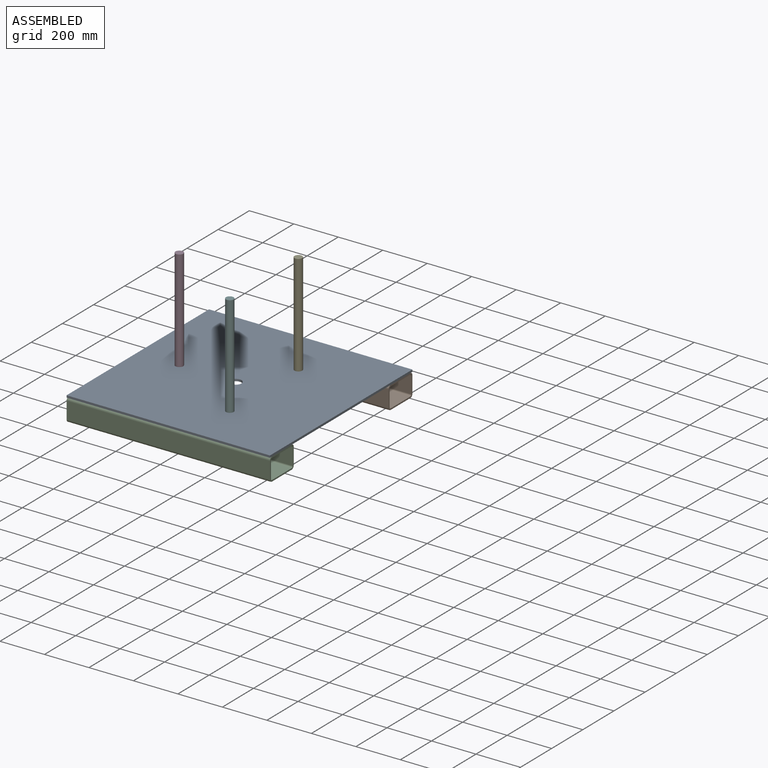
[diagram: assembled view]
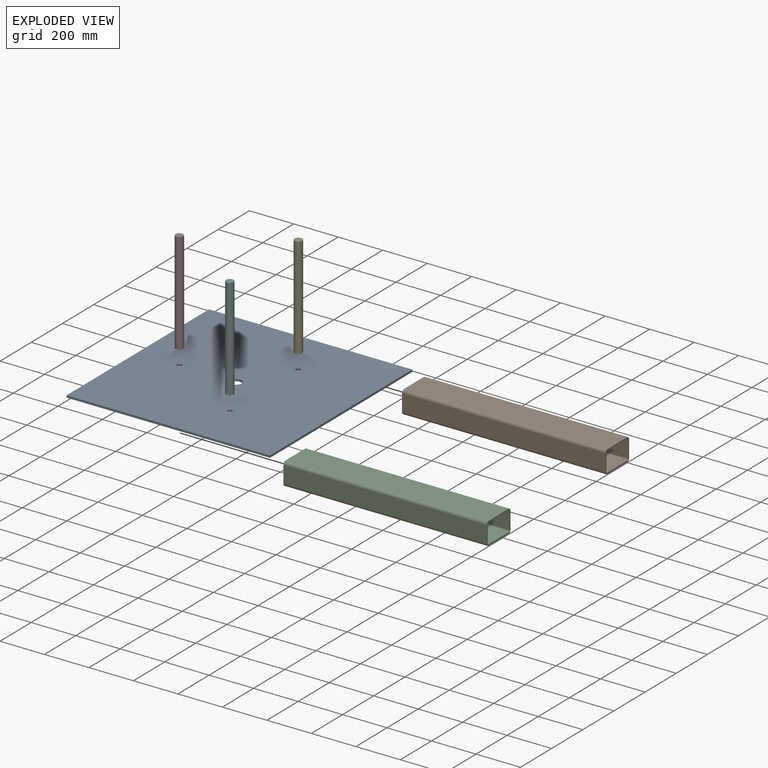
[diagram: exploded view]
GUIDED TOUR — MATED ASSEMBLY (Onshape document 0db063746d4434d91c17ba24, AutoMate assembly 0db063746d4434d91c17ba24_261ff35743def0791f22cdd4_7c16d2739598a7f1a899eeeb_default)

This assembly has 6 components, labeled P0..P5 below (a component is one placed occurrence of a part; the same part can appear more than once), held together by 5 mates. A mate is a constraint between two components; its type names the relative motion it leaves free:
  FASTENED — locks the two components together rigidly (no relative motion).
Axis/direction vectors are unit vectors and 'through' points are millimeter coordinates, both in the assembly's world frame.

MATES
  1. FASTENED "Fastened 6": P0 <-> P1, direction (1.000, 0.000, 0.000) through (471.35, 460.48, -4.76) mm
  2. FASTENED "Fastened 3": P0 <-> P4, direction (0.000, 0.000, 1.000) through (127.00, 219.97, 0.00) mm
  3. FASTENED "Fastened 4": P5 <-> P0, direction (0.000, 0.000, -1.000) through (127.00, -219.97, 0.00) mm
  4. FASTENED "Fastened 2": P0 <-> P3, direction (0.000, 0.000, 1.000) through (-254.00, 0.00, 0.00) mm
  5. FASTENED "Fastened 5": P0 <-> P2, direction (1.000, 0.000, 0.000) through (471.35, -453.92, -4.76) mm

ASSEMBLY ORDER
  1. P5 — the base component [order verified]
  2. P4 [order verified]
  3. P3 [order verified]
  4. P0 [order verified]
  5. P2 [order verified]
  6. P1 [order verified]
Order-tag legend:
  [order verified] — this step's position reverses a verified removal order: the component was checked to insert without passing through the ones already placed.

Of the 6 components, 5 carry the full construction recipe — the FeatureScript program that regenerates the part's solid from scratch; the rest are supplied as boundary geometry only.
Each toured component is shown spotlighted twice — in the assembled view, then in the exploded view, where a leader line traces a displaced component back to its assembled socket (saturated green if recipe-attached, orange if geometry-only; every other component desaturated gray) — followed by its recipe or geometry summary and the mates that hold it.
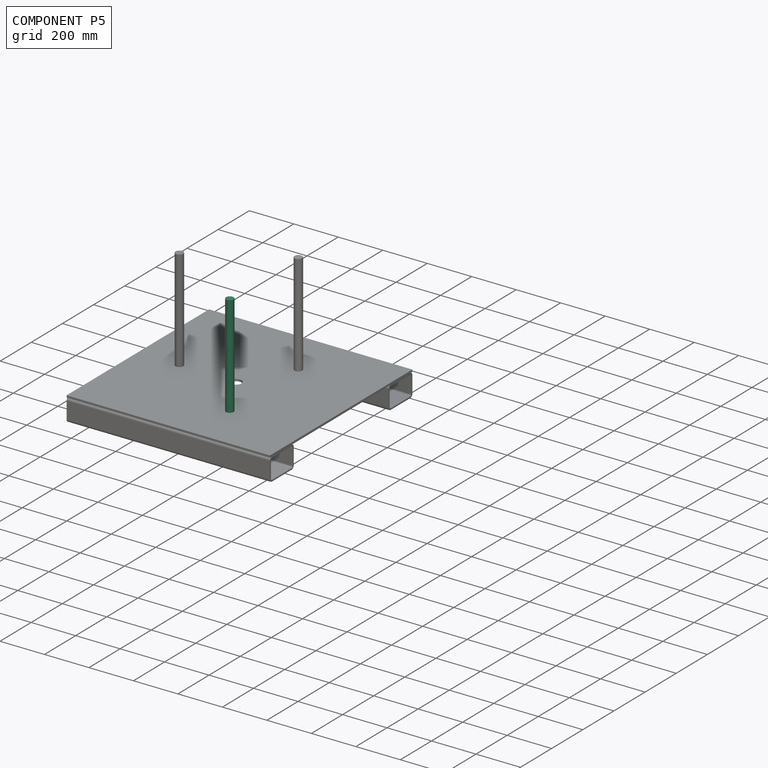
[diagram: component P5 — assembled]
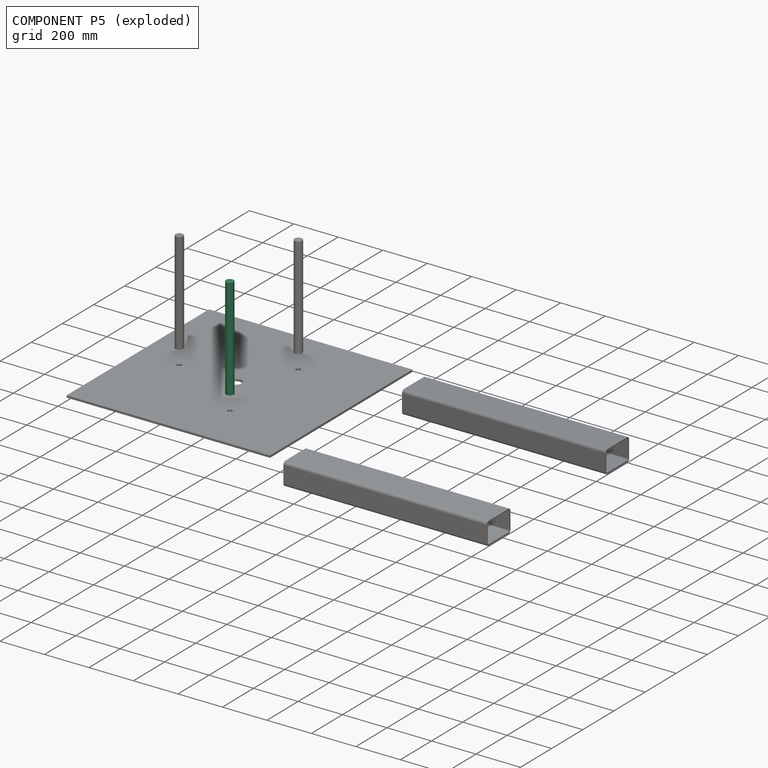
[diagram: component P5 — exploded]
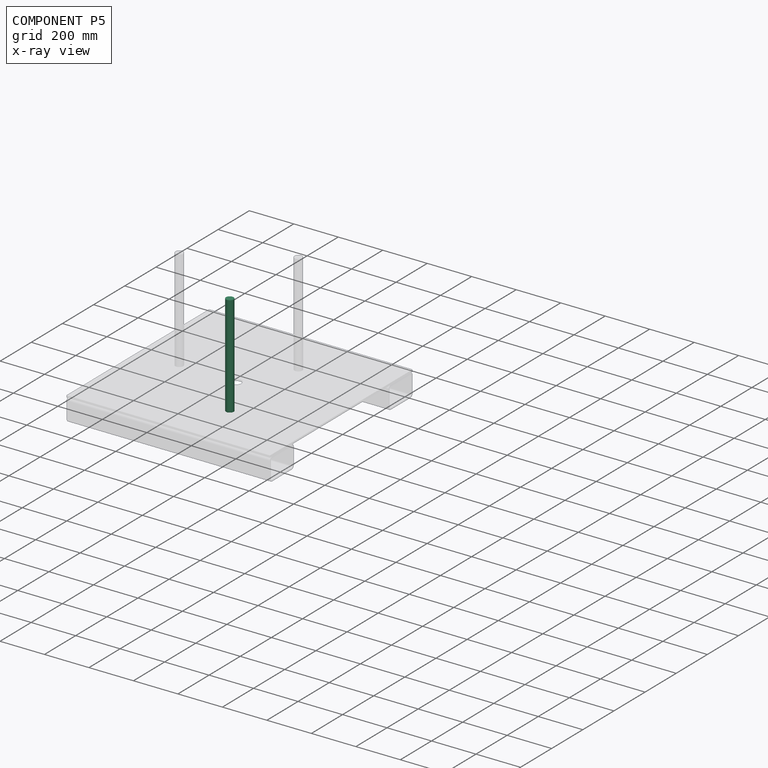
[diagram: component P5 — x-ray view]
COMPONENT P5 — same part as P3 (CADFS 00511919); its construction recipe is shown at P3.
Held by: FASTENED mate "Fastened 4" to P0.
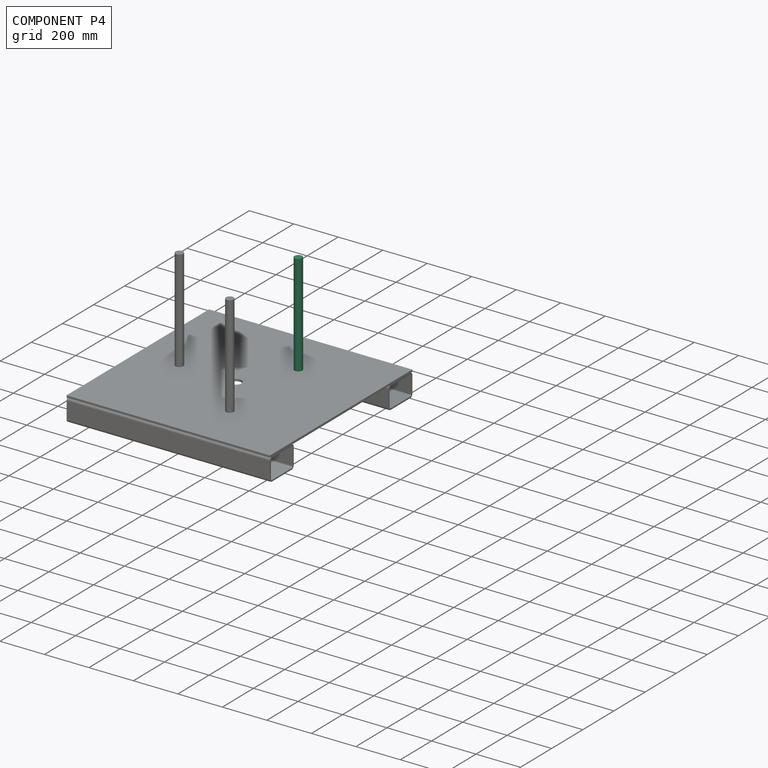
[diagram: component P4 — assembled]
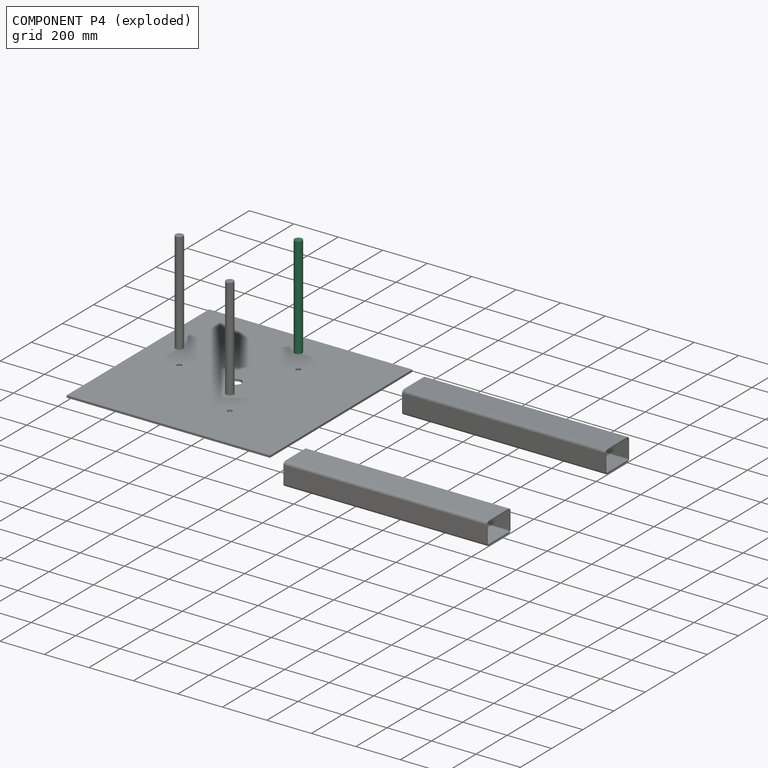
[diagram: component P4 — exploded]
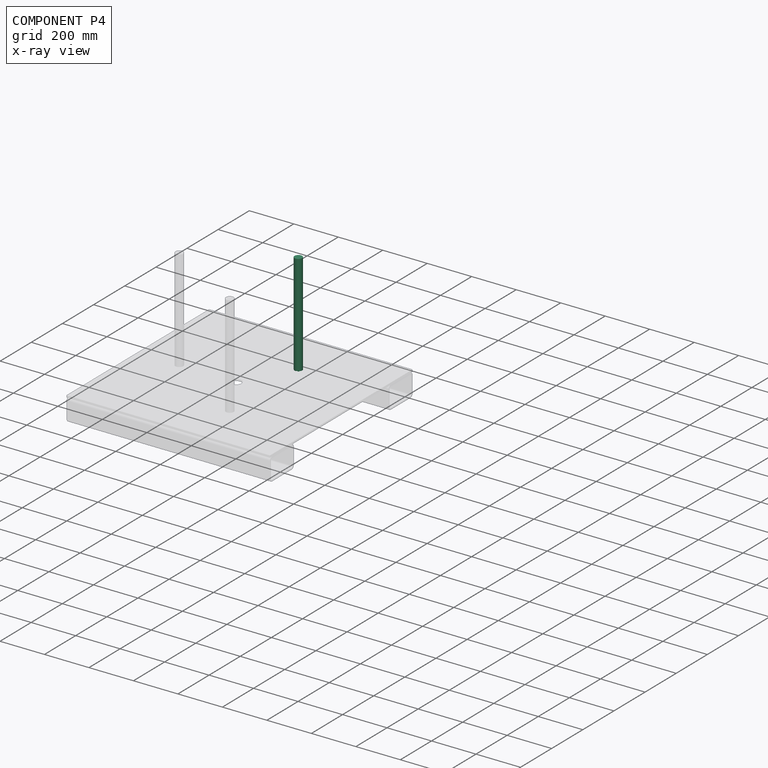
[diagram: component P4 — x-ray view]
COMPONENT P4 — same part as P3 (CADFS 00511919); its construction recipe is shown at P3.
Held by: FASTENED mate "Fastened 3" to P0.
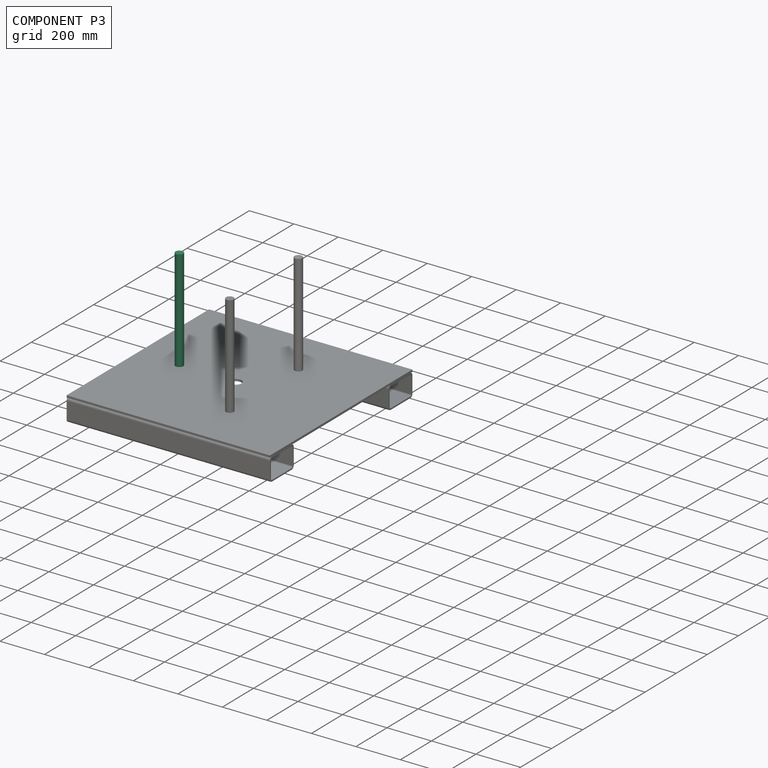
[diagram: component P3 — assembled]
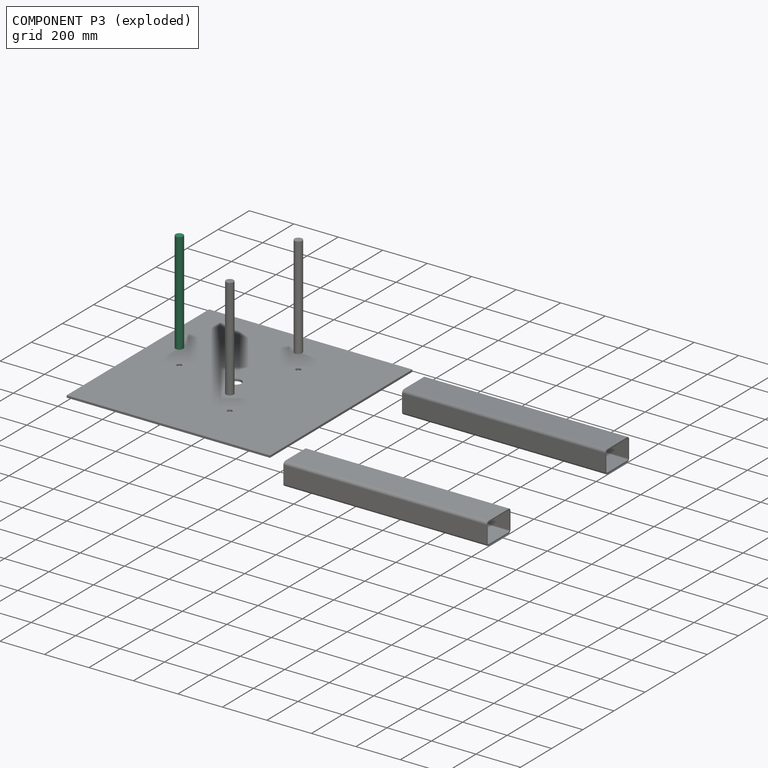
[diagram: component P3 — exploded]
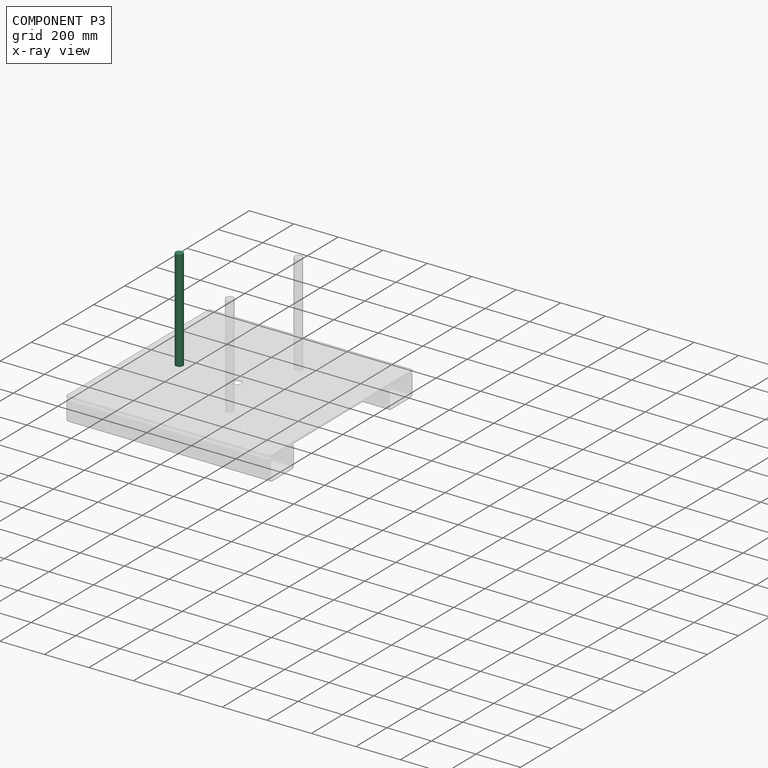
[diagram: component P3 — x-ray view]
COMPONENT P3 — recipe-attached (CADFS 00511919, mesh-verified: the recipe's output STEP matches this component's geometry to below the mesh-comparison resolution (tessellation chordal tolerance ~0.69 mm)).
Held by: FASTENED mate "Fastened 2" to P0.
Construction recipe (FeatureScript — the CAD program that rebuilds this solid; sketch coordinates are in the units given by the * unit suffixes, e.g. mm):

FeatureScript 1511;
import(path : "onshape/std/geometry.fs", version : "1511.0");
import(path : "onshape/std/common.fs", version : "1511.0");
const mm = millimeter;
const VERTEX = EntityType.VERTEX;
const EDGE = EntityType.EDGE;
const FACE = EntityType.FACE;
const BODY = EntityType.BODY;
function v(x, y){return vector(x, y);}
function OD(order){return orderDisambiguation(order);}
function OSD(set){return originalSetDisambiguation(set);}
function TD(topology){return topologyDisambiguation(topology);}
function TDD(query){return trueDependencyDisambiguation(query);}
function sQuery(a, b, c) {return sketchEntityQuery(a, b, c);}

annotation { "Feature Type Name" : "Feature", "Feature Type Description" : "" }
export const myFeature = defineFeature(function(context is Context, id is Id, definition is map)
    precondition{}
    {
        {
            var Q0;
            Q0=qCreatedBy(makeId("Top.planeOp"),FACE);
            var sketch = newSketch(context, id + "F0", { "sketchPlane" : qUnion([Q0])});
            skCircle(sketch, "E0", {"center": v(0, 0) * mm, "radius": 17.46 * mm});
            skSolve(sketch);
        }
        {
            var Q0;
            Q0 = qSketchRegion(id + "F0", true);
            extrude(context, id + "F1", {"entities" : qUnion([Q0]), "depth" : 457.2 * mm, "offsetDistance" : 25.4 * mm});
        }
    });
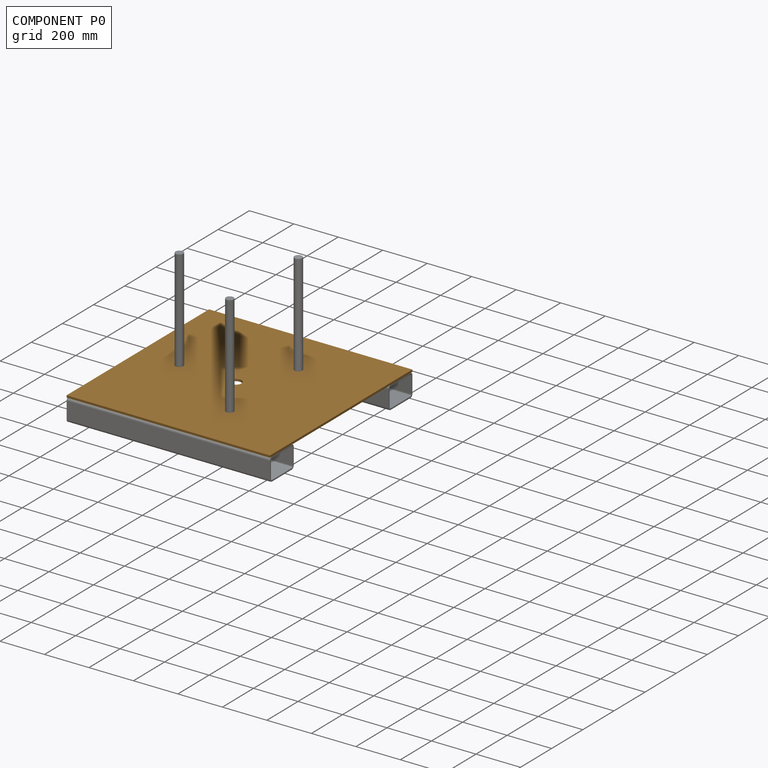
[diagram: component P0 — assembled]
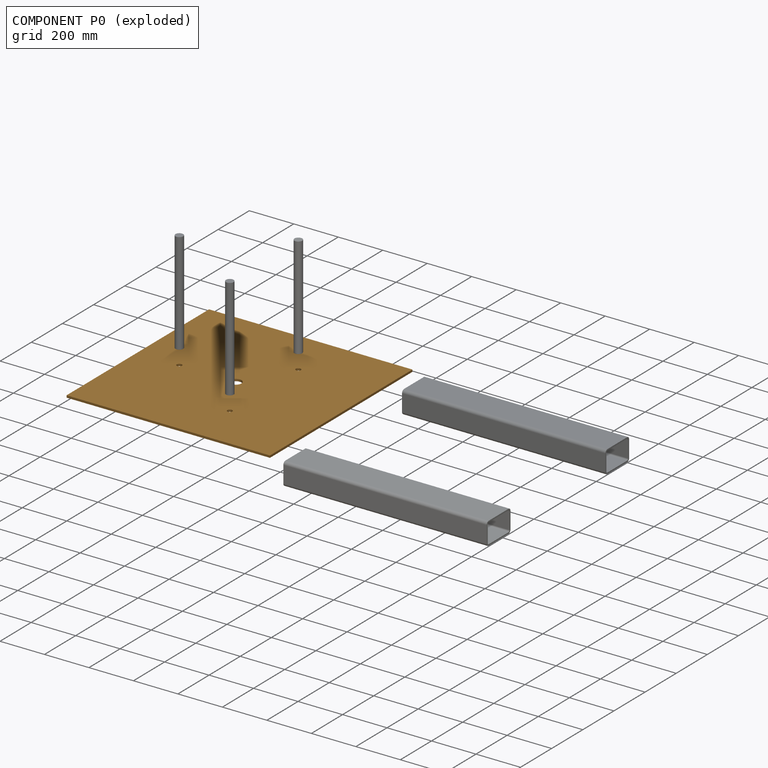
[diagram: component P0 — exploded]
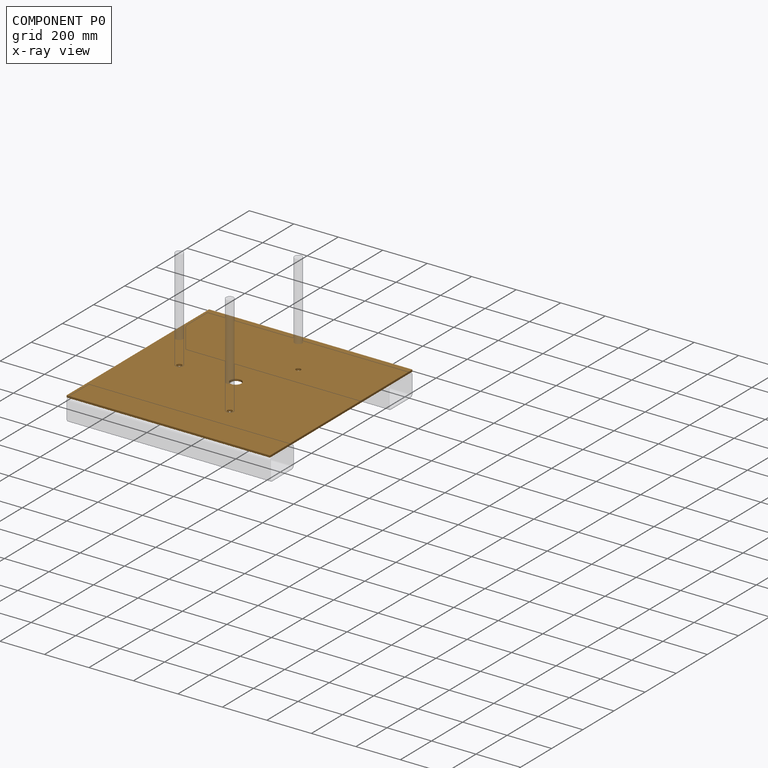
[diagram: component P0 — x-ray view]
COMPONENT P0 — geometry summary (no construction recipe available for this part):
  bounding box: 914.4 x 914.4 x 9.5 mm
  B-rep topology: 1 solid, 10 faces, 52 edges
  volume: 7933722 mm^3 (100% of its bounding box)
  symmetry: 2-fold rotationally symmetric about the x axis; mirror-symmetric across its y mid-plane, z mid-plane
Held by: FASTENED mate "Fastened 6" to P1; FASTENED mate "Fastened 3" to P4; FASTENED mate "Fastened 4" to P5; FASTENED mate "Fastened 2" to P3; FASTENED mate "Fastened 5" to P2.
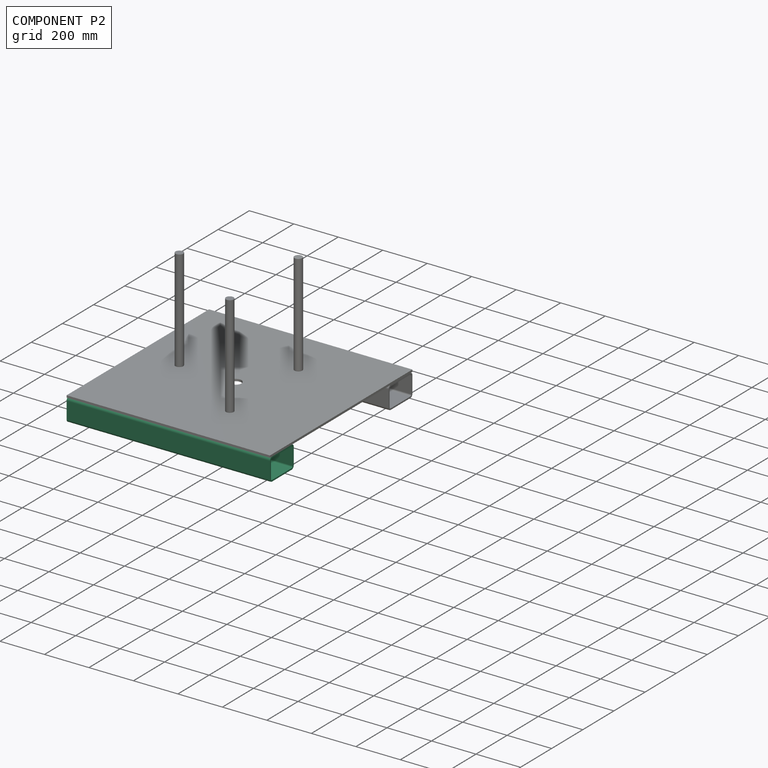
[diagram: component P2 — assembled]
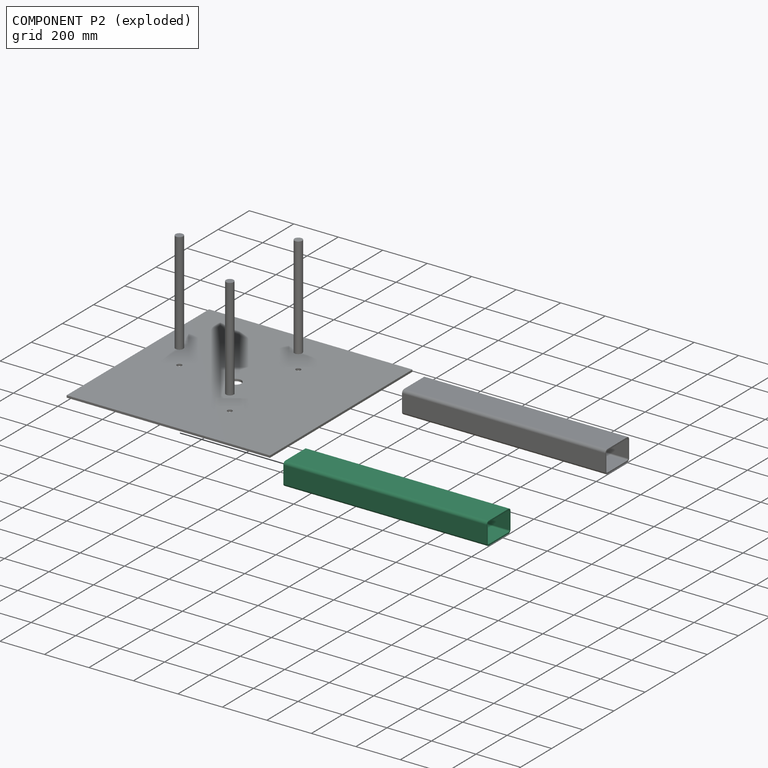
[diagram: component P2 — exploded]
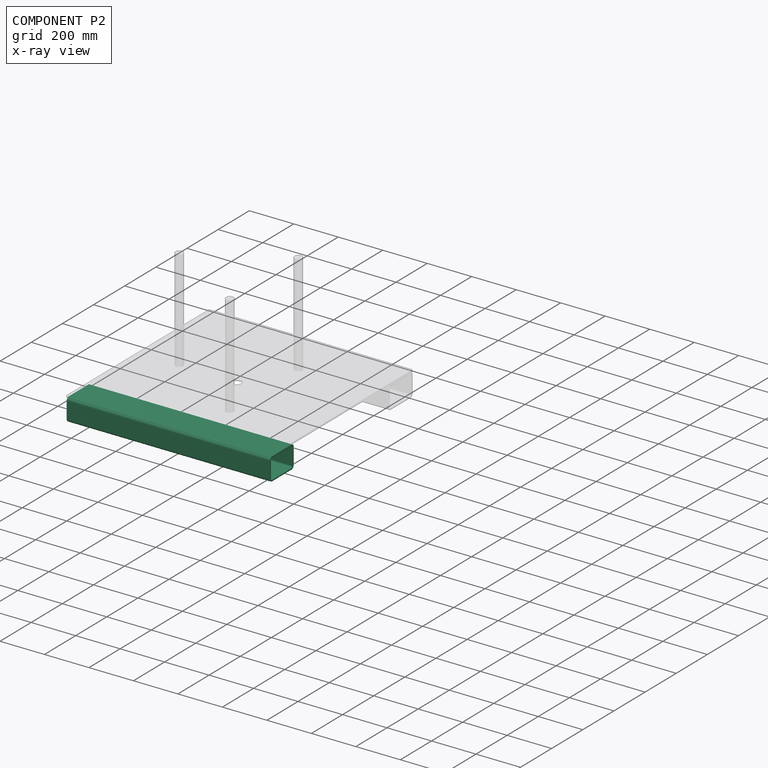
[diagram: component P2 — x-ray view]
COMPONENT P2 — same part as P1 (CADFS 00511918); its construction recipe is shown at P1.
Held by: FASTENED mate "Fastened 5" to P0.
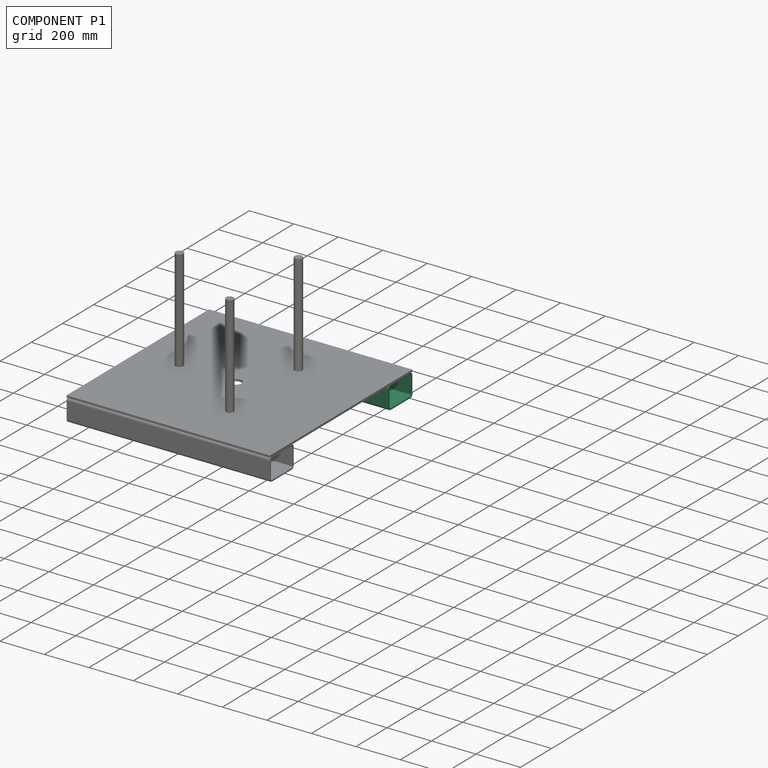
[diagram: component P1 — assembled]
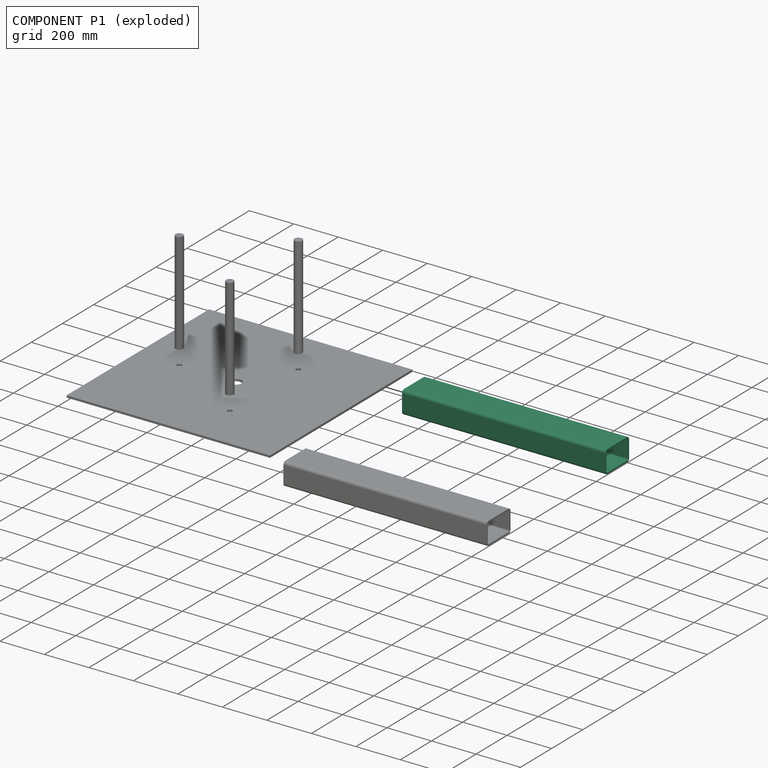
[diagram: component P1 — exploded]
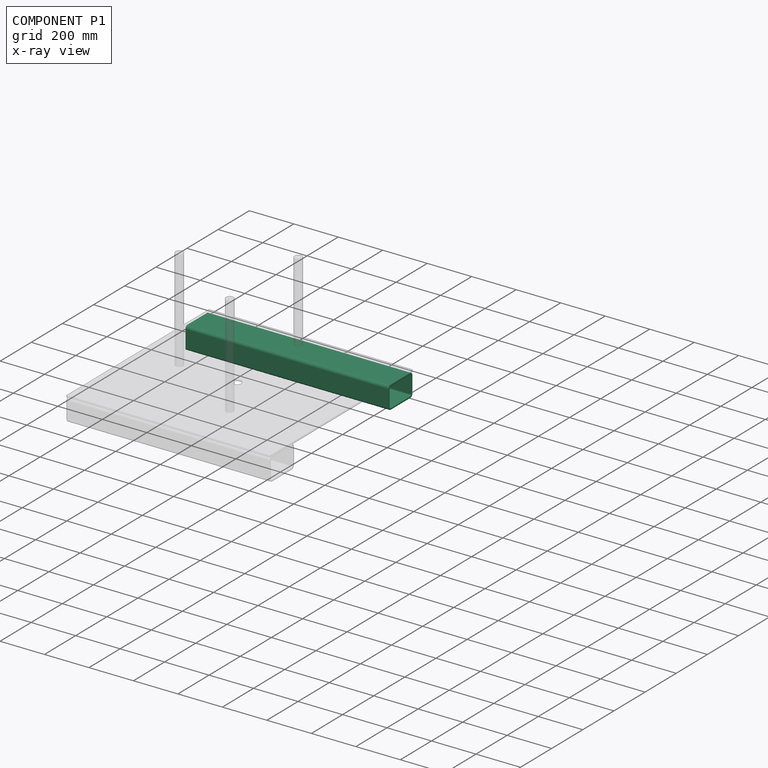
[diagram: component P1 — x-ray view]
COMPONENT P1 — recipe-attached (CADFS 00511918, mesh-verified: the recipe's output STEP matches this component's geometry to below the mesh-comparison resolution (tessellation chordal tolerance ~1.4 mm)).
Held by: FASTENED mate "Fastened 6" to P0.
Construction recipe (FeatureScript — the CAD program that rebuilds this solid; sketch coordinates are in the units given by the * unit suffixes, e.g. mm):

FeatureScript 1511;
import(path : "onshape/std/geometry.fs", version : "1511.0");
import(path : "onshape/std/common.fs", version : "1511.0");
const mm = millimeter;
const VERTEX = EntityType.VERTEX;
const EDGE = EntityType.EDGE;
const FACE = EntityType.FACE;
const BODY = EntityType.BODY;
function v(x, y){return vector(x, y);}
function OD(order){return orderDisambiguation(order);}
function OSD(set){return originalSetDisambiguation(set);}
function TD(topology){return topologyDisambiguation(topology);}
function TDD(query){return trueDependencyDisambiguation(query);}
function sQuery(a, b, c) {return sketchEntityQuery(a, b, c);}

annotation { "Feature Type Name" : "Feature", "Feature Type Description" : "" }
export const myFeature = defineFeature(function(context is Context, id is Id, definition is map)
    precondition{}
    {
        {
            var Q0;
            Q0=qCreatedBy(makeId("Right.planeOp"),FACE);
            var sketch = newSketch(context, id + "F0", { "sketchPlane" : qUnion([Q0])});
            skLineSegment(sketch, "E0.bottom", {"start": v(-68.5, 15.76) * mm, "end": v(58.5, 15.76) * mm});
            skLineSegment(sketch, "E0.top", {"start": v(-68.5, 117.36) * mm, "end": v(58.5, 117.36) * mm});
            skLineSegment(sketch, "E0.left", {"start": v(-81.2, 28.46) * mm, "end": v(-81.2, 104.66) * mm});
            skLineSegment(sketch, "E0.right", {"start": v(71.2, 28.46) * mm, "end": v(71.2, 104.66) * mm});
            skPoint(sketch, "E1.visualSharp", {"position": v(-81.2, 117.36) * mm});
            skArc(sketch, "E1.filletArc", {"start": v(-68.5, 117.36) * mm, "mid": v(-77.48, 113.64) * mm, "end": v(-81.2, 104.66) * mm});
            skPoint(sketch, "E2.visualSharp", {"position": v(71.2, 117.36) * mm});
            skArc(sketch, "E2.filletArc", {"start": v(71.2, 104.66) * mm, "mid": v(67.48, 113.64) * mm, "end": v(58.5, 117.36) * mm});
            skPoint(sketch, "E3.visualSharp", {"position": v(71.2, 15.76) * mm});
            skArc(sketch, "E3.filletArc", {"start": v(58.5, 15.76) * mm, "mid": v(67.48, 19.48) * mm, "end": v(71.2, 28.46) * mm});
            skPoint(sketch, "E4.visualSharp", {"position": v(-81.2, 15.76) * mm});
            skArc(sketch, "E4.filletArc", {"start": v(-81.2, 28.46) * mm, "mid": v(-77.48, 19.48) * mm, "end": v(-68.5, 15.76) * mm});
            skSolve(sketch);
        }
        {
            var Q0;
            Q0=makeQuery(id+"F0.imprint","IMPRINT",FACE,{"disambiguationData":[TD([[makeQuery(id+"F0.imprint","IMPRINT",EDGE,{"derivedFrom":sQuery(id+"F0.wireOp",EDGE,"E0.bottom")}),1.0]])]});
            extrude(context, id + "F1", {"entities" : qUnion([Q0]), "oppositeDirection" : true, "depth" : 914.4 * mm});
        }
        {
            var Q0;
            Q0=makeQuery(id+"F1.opExtrude","CAP_FACE",FACE,{"disambiguationData":[OSD([sQuery(id+"F0.wireOp",EDGE,"E0.bottom"),sQuery(id+"F0.wireOp",EDGE,"E0.top"),sQuery(id+"F0.wireOp",EDGE,"E0.left"),sQuery(id+"F0.wireOp",EDGE,"E0.right")])],"isStart":true});
            var sketch = newSketch(context, id + "F2", { "sketchPlane" : qUnion([Q0])});
            skLineSegment(sketch, "E5.bottom", {"start": v(-68.5, 22.11) * mm, "end": v(58.5, 22.11) * mm});
            skLineSegment(sketch, "E5.top", {"start": v(-68.5, 111.01) * mm, "end": v(58.5, 111.01) * mm});
            skLineSegment(sketch, "E5.left", {"start": v(-74.85, 28.46) * mm, "end": v(-74.85, 104.66) * mm});
            skLineSegment(sketch, "E5.right", {"start": v(64.85, 28.46) * mm, "end": v(64.85, 104.66) * mm});
            skPoint(sketch, "E6.visualSharp", {"position": v(-74.85, 111.01) * mm});
            skArc(sketch, "E6.filletArc", {"start": v(-68.5, 111.01) * mm, "mid": v(-72.99, 109.15) * mm, "end": v(-74.85, 104.66) * mm});
            skPoint(sketch, "E7.visualSharp", {"position": v(64.85, 111.01) * mm});
            skArc(sketch, "E7.filletArc", {"start": v(64.85, 104.66) * mm, "mid": v(63, 109.15) * mm, "end": v(58.5, 111.01) * mm});
            skPoint(sketch, "E8.visualSharp", {"position": v(64.85, 22.11) * mm});
            skArc(sketch, "E8.filletArc", {"start": v(58.5, 22.11) * mm, "mid": v(63, 23.97) * mm, "end": v(64.85, 28.46) * mm});
            skPoint(sketch, "E9.visualSharp", {"position": v(-74.85, 22.11) * mm});
            skArc(sketch, "E9.filletArc", {"start": v(-74.85, 28.46) * mm, "mid": v(-72.99, 23.97) * mm, "end": v(-68.5, 22.11) * mm});
            skSolve(sketch);
        }
        {
            var Q0;
            Q0 = qSketchRegion(id + "F2", true);
            extrude(context, id + "F3", {"entities" : qUnion([Q0]), "operationType" : NewBodyOperationType.REMOVE, "endBound" : BoundingType.THROUGH_ALL, "oppositeDirection" : true, "depth" : 25.4 * mm});
        }
    });
PROVENANCE & LICENSES
Assembly (occurrences, transforms, mates, per-part STEP geometry): AutoMate dataset, Zenodo record 7776208, CC0.
Construction recipes: CADFS (HuggingFace VladPyatov/CADFS, CC-BY-4.0, layered over the ABC dataset), FeatureScript reconstruction programs keyed by ABC model id.
Join: ABC meta listings map ABC model id -> Onshape documentId; within a shared document, parts are matched by geometric signature (bounding-box dims + volume at 0.1% relative tolerance, exact B-rep face/solid counts).
Verification: 5 of this assembly's 6 components carry a recipe attachment, and every attachment is mesh-verified: the CADFS STEP and the AutoMate member STEP were compared as meshes in their shared local frame (symmetric sampled-point-to-mesh distance); worst across the 5 attachments: below the mesh-comparison resolution (tessellation chordal tolerance ~1.4 mm) on a 933 mm part.
Renders: orthographic iso camera (az 35 / el 25); the floor grid conveys scale (grid pitch printed in each image; no ruler). In the exploded view each component is displaced by its stored offset vector: the offsets alone carry the explosion direction (mate normal/axis signs are not orientation cues and do not encode it), and separation distances are assigned per mate-chain, not proportionally to assembly-order depth.
